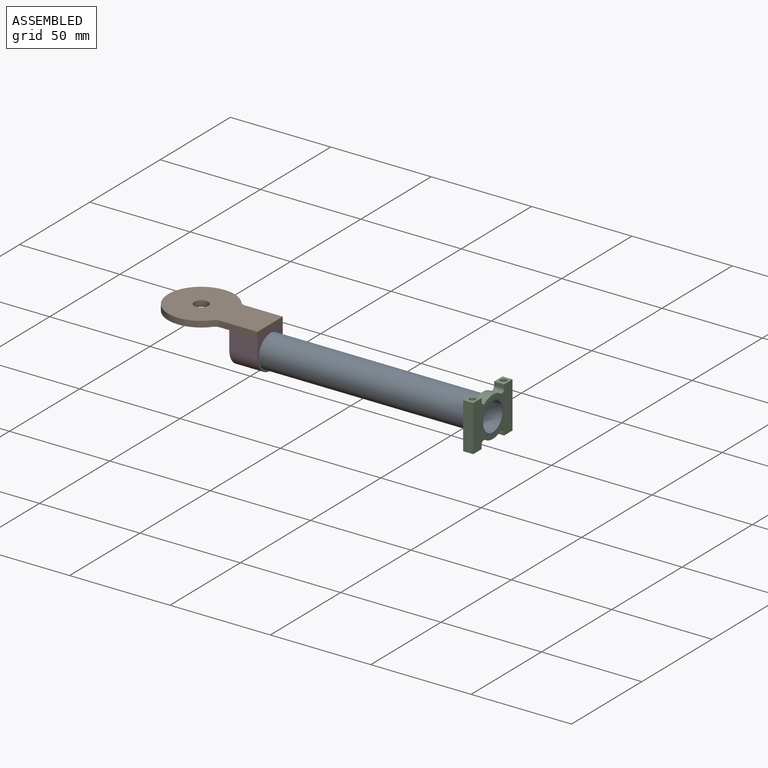
[diagram: assembled view]
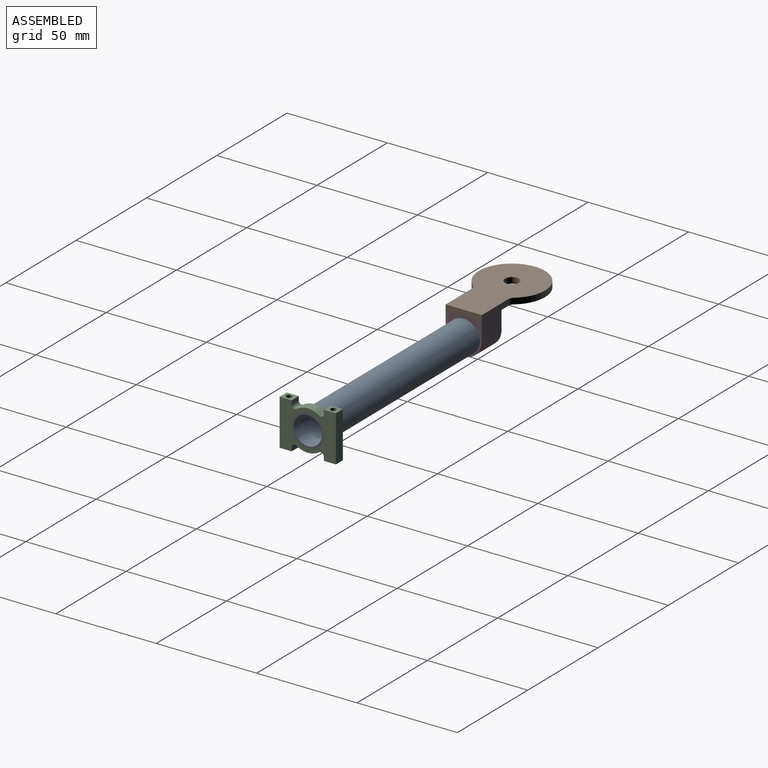
[diagram: assembled view, second angle]
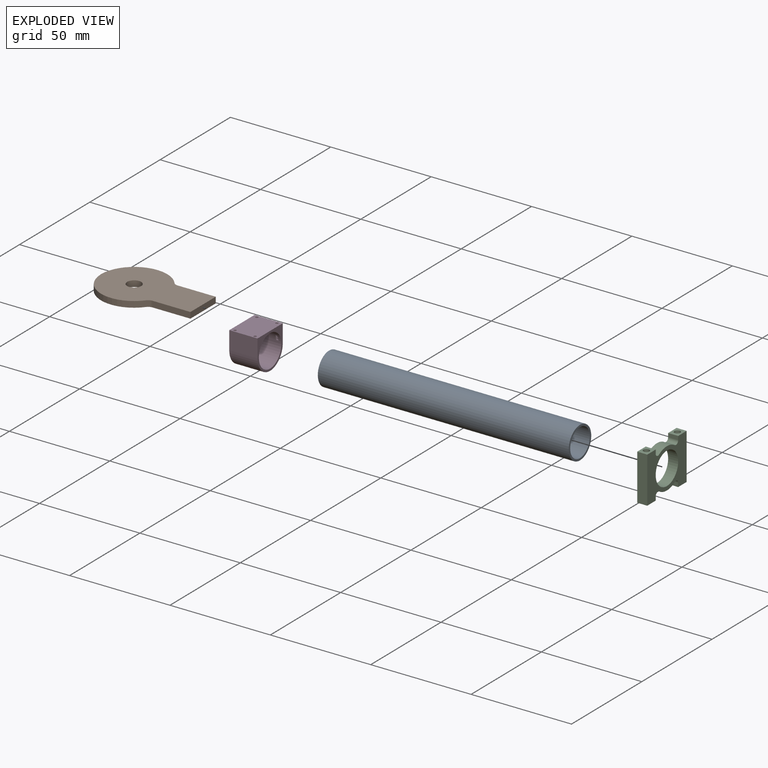
[diagram: exploded view]
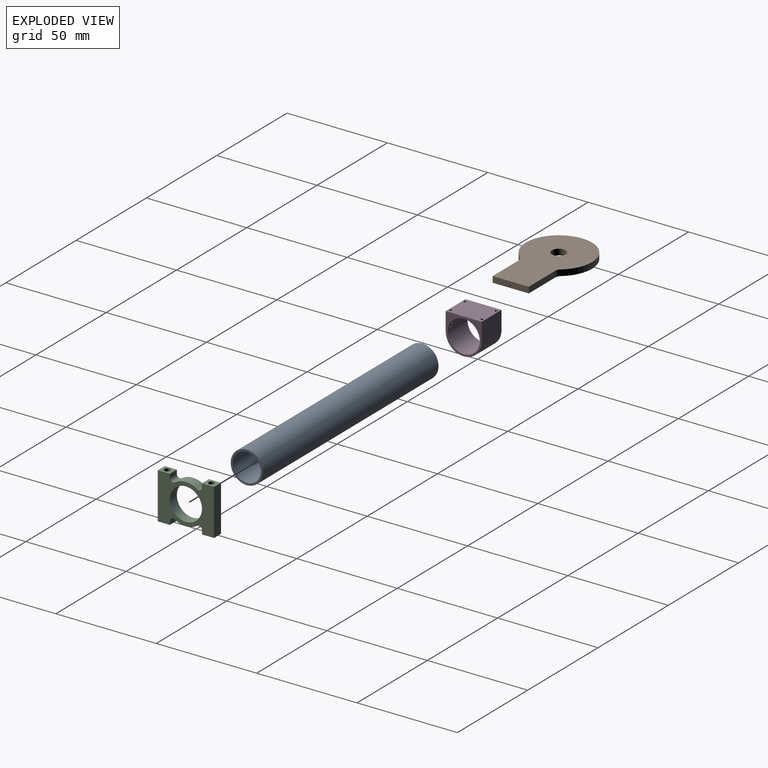
[diagram: exploded view, second angle]
ASSEMBLY  parts=4 mates=6
PART A: 4 faces, bbox 125x16x16 mm
  f0: cylinder r=7mm len=125mm, axis (-1,0,0), area 5497.8mm2, adj f2,f3
  f1: cylinder r=8mm len=125mm, axis (-1,0,0), area 6283.2mm2, adj f2,f3
  f2: plane 16x16mm, normal (1,0,0), area 47.1mm2, adj f0,f1
  f3: plane 16x16mm, normal (-1,0,0), area 47.1mm2, adj f0,f1
PART B: 9 faces, bbox 50.8x33x3 mm
  f0: cylinder r=3.17mm len=3mm, axis (0,0,-1), area 8.6mm2, adj f1,f6,f7,f8
  f1: cylinder r=16.5mm len=33mm, axis (0,0,-1), area 245mm2, adj f0,f2,f7,f8
  f2: cylinder r=3.17mm len=3mm, axis (0,0,-1), area 8.6mm2, adj f1,f3,f7,f8
  f3: plane 18.85x3mm, normal (0,-1,0), area 56.6mm2, adj f2,f4,f7,f8
  f4: plane 18x3mm, normal (1,0,0), area 54mm2, adj f3,f6,f7,f8
  f5: cylinder r=3.5mm len=7mm, axis (0,0,-1), area 66mm2, adj f7,f8
  f6: plane 18.85x3mm, normal (0,1,0), area 56.6mm2, adj f0,f4,f7,f8
  f7: plane 50.81x33mm, normal (0,0,1), area 1153.6mm2, adj f0,f1,f2,f3,f4,f5,f6
  f8: plane 50.81x33mm, normal (0,0,-1), area 1153.6mm2, adj f0,f1,f2,f3,f4,f5,f6
PART C: 21 faces, bbox 5x28x23 mm
  f0: plane 6x5mm, normal (0,0,-1), area 22.9mm2, adj f1,f16,f17,f18,f19
  f1: plane 5x1.85mm, normal (0,1,0), area 9.2mm2, adj f0,f2,f17,f18
  f2: cylinder r=1.59mm len=5mm, axis (-1,0,0), area 17.1mm2, adj f1,f3,f17,f18
  f3: cylinder r=10mm len=11.07mm, axis (-1,0,0), area 58.6mm2, adj f2,f4,f17,f18
  f4: cylinder r=1.59mm len=5mm, axis (-1,0,0), area 17.1mm2, adj f3,f5,f17,f18
  f5: plane 5x1.85mm, normal (0,-1,0), area 9.2mm2, adj f4,f6,f17,f18
  f6: plane 6x5mm, normal (0,0,-1), area 22.9mm2, adj f5,f7,f17,f18,f20
  f7: plane 23x5mm, normal (0,1,0), area 115mm2, adj f6,f8,f17,f18
  f8: plane 6x5mm, normal (0,0,1), area 22.9mm2, adj f7,f9,f17,f18,f20
  f9: plane 5x1.85mm, normal (0,-1,0), area 9.2mm2, adj f8,f10,f17,f18
  f10: cylinder r=1.59mm len=5mm, axis (-1,0,0), area 17.1mm2, adj f9,f11,f17,f18
  f11: cylinder r=10mm len=11.07mm, axis (-1,0,0), area 58.6mm2, adj f10,f12,f17,f18
  f12: cylinder r=1.59mm len=5mm, axis (-1,0,0), area 17.1mm2, adj f11,f13,f17,f18
  f13: plane 5x1.85mm, normal (0,1,0), area 9.2mm2, adj f12,f14,f17,f18
  f14: plane 6x5mm, normal (0,0,1), area 22.9mm2, adj f13,f16,f17,f18,f19
  f15: cylinder r=8mm len=16mm, axis (-1,0,0), area 251.3mm2, adj f17,f18
  f16: plane 23x5mm, normal (0,-1,0), area 115mm2, adj f0,f14,f17,f18
  f17: plane 28x23mm, normal (1,0,0), area 366.4mm2, adj f0,f1,f2,f3,f4,f5,f6,f7
  f18: plane 28x23mm, normal (-1,0,0), area 366.4mm2, adj f0,f1,f2,f3,f4,f5,f6,f7
  f19: cylinder r=1.5mm len=23mm, axis (0,0,1), area 216.8mm2, adj f0,f14
  f20: cylinder r=1.5mm len=23mm, axis (0,0,1), area 216.8mm2, adj f6,f8
PART D: 15 faces, bbox 14.1x18x18 mm
  f0: cylinder r=9mm len=18mm, axis (-1,0,0), area 397.3mm2, adj f1,f4,f5,f6
  f1: plane 14.05x9mm, normal (0,1,0), area 126.4mm2, adj f0,f2,f5,f6
  f2: plane 18x14.05mm, normal (0,0,1), area 247.8mm2, adj f1,f4,f5,f6,f7,f9,f11,f13
  f3: cylinder r=8mm len=16mm, axis (-1,0,0), area 695.8mm2, adj f5,f6,f7,f8,f9,f10,f11,f12
  f4: plane 14.05x9mm, normal (0,-1,0), area 126.4mm2, adj f0,f2,f5,f6
  f5: plane 18x18mm, normal (1,0,0), area 88.2mm2, adj f0,f1,f2,f3,f4
  f6: plane 18x18mm, normal (-1,0,0), area 88.2mm2, adj f0,f1,f2,f3,f4
  f7: cylinder r=0.64mm len=7.62mm, axis (0,0,1), area 27.1mm2, adj f2,f3,f8
  f8: plane 1.26x0.56mm, normal (0,0,1), area 0.5mm2, adj f3,f7
  f9: cylinder r=0.64mm len=7.62mm, axis (0,0,1), area 26.5mm2, adj f2,f3,f10
  f10: plane 1.22x0.46mm, normal (0,0,1), area 0.4mm2, adj f3,f9
  f11: cylinder r=0.64mm len=7.62mm, axis (0,0,1), area 27.1mm2, adj f2,f3,f12
  f12: plane 1.26x0.56mm, normal (0,0,1), area 0.5mm2, adj f3,f11
  f13: cylinder r=0.64mm len=7.62mm, axis (0,0,1), area 26.5mm2, adj f2,f3,f14
  f14: plane 1.22x0.46mm, normal (0,0,1), area 0.4mm2, adj f3,f13
PLACE A t=(-4.19,0,0)mm
PLACE B t=(-5.2,0,9)mm
PLACE C t=(115.81,0,0)mm
PLACE D t=(-4.19,0,0)mm
MATE planar A.f0 <-> C.f3  axis (1,0,0) through (120.81,0,0)mm
MATE planar D.f3 <-> A.f0  axis (-1,0,0) through (-4.19,0,0)mm
MATE fastened D.f3 <-> A.f0  axis (-1,0,0) through (-4.19,0,0)mm
MATE planar D.f5 <-> B.f4  axis (1,0,0) through (9.86,0,2.76)mm
MATE planar B.f8 <-> D.f2  axis (0,0,-1) through (-17.17,0,9)mm
MATE planar A.f0 <-> D.f3  axis (-1,0,0) through (-4.19,0,0)mm
